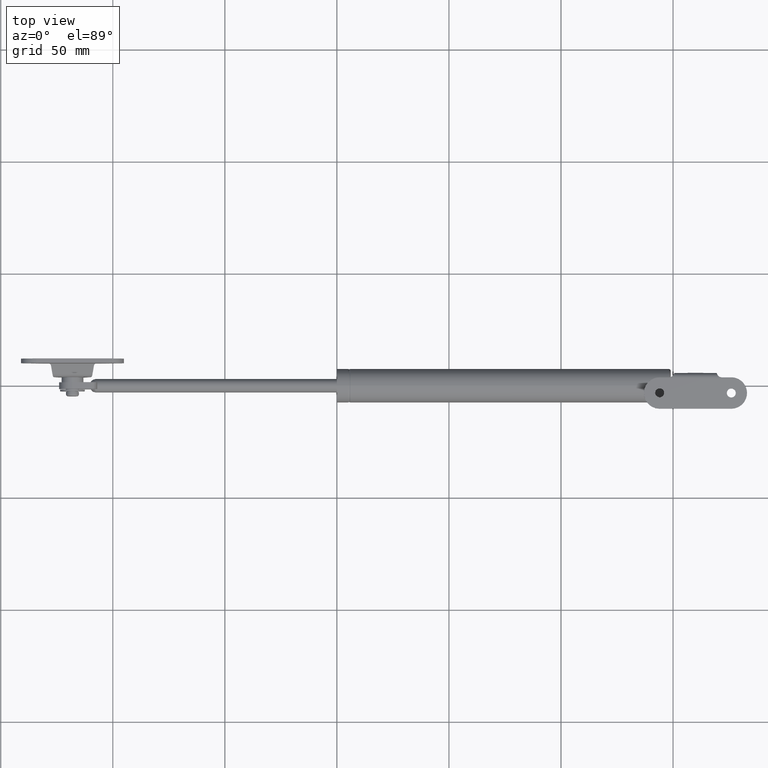
[diagram: clean part render]
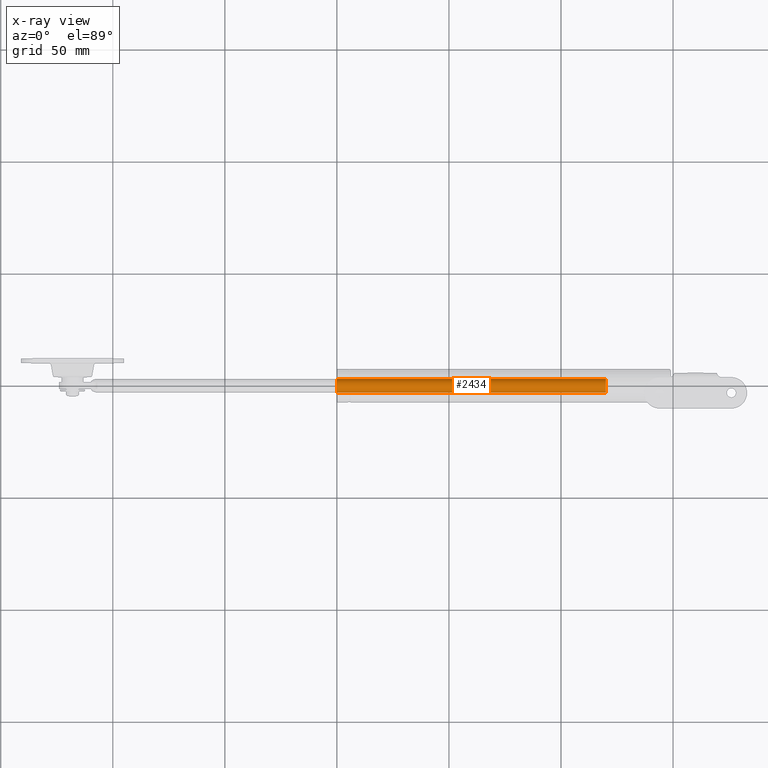
[diagram: x-ray — body ghosted, one internal face saturated and labeled with its STEP entity id]
A machine part, top view, then the same camera in x-ray: the body is ghosted and one INTERNAL B-rep face — a face not visible from any outside direction — is saturated and labeled: STEP entity #2434.
In plain terms, the highlighted cylindrical surface (bore or boss wall) has radius 3 mm, axis along (-1, 0, -0).
Its self-contained STEP definition (entity closure, byte-faithful):
#450=CYLINDRICAL_SURFACE('',#2619,3.);
#529=FACE_BOUND('',#766,.T.);
#592=FACE_OUTER_BOUND('',#765,.T.);
#765=EDGE_LOOP('',(#1763));
#766=EDGE_LOOP('',(#1764));
#975=CIRCLE('',#2620,3.);
#976=CIRCLE('',#2621,3.);
#1149=VERTEX_POINT('',#3853);
#1150=VERTEX_POINT('',#3855);
#1393=EDGE_CURVE('',#1149,#1149,#975,.T.);
#1394=EDGE_CURVE('',#1150,#1150,#976,.T.);
#1763=ORIENTED_EDGE('',*,*,#1393,.F.);
#1764=ORIENTED_EDGE('',*,*,#1394,.F.);
#2434=ADVANCED_FACE('',(#592,#529),#450,.F.);
#2619=AXIS2_PLACEMENT_3D('',#3852,#3017,#3018);
#2620=AXIS2_PLACEMENT_3D('',#3854,#3019,#3020);
#2621=AXIS2_PLACEMENT_3D('',#3856,#3021,#3022);
#3017=DIRECTION('center_axis',(-1.,0.,-8.49276722564391E-34));
#3018=DIRECTION('ref_axis',(0.,-1.,0.));
#3019=DIRECTION('center_axis',(1.,0.,8.49276722564391E-34));
#3020=DIRECTION('ref_axis',(0.,-1.,0.));
#3021=DIRECTION('center_axis',(-1.,0.,-8.49276722564391E-34));
#3022=DIRECTION('ref_axis',(0.,-1.,0.));
#3852=CARTESIAN_POINT('Origin',(60.0000000000001,0.,5.09566033538635E-32));
#3853=CARTESIAN_POINT('',(7.105427357601E-14,-3.,6.03447405868274E-47));
#3854=CARTESIAN_POINT('Origin',(7.105427357601E-14,0.,6.15804989205242E-47));
#3855=CARTESIAN_POINT('',(120.,-3.,1.01913206707727E-31));
#3856=CARTESIAN_POINT('Origin',(120.,0.,1.01913206707727E-31));